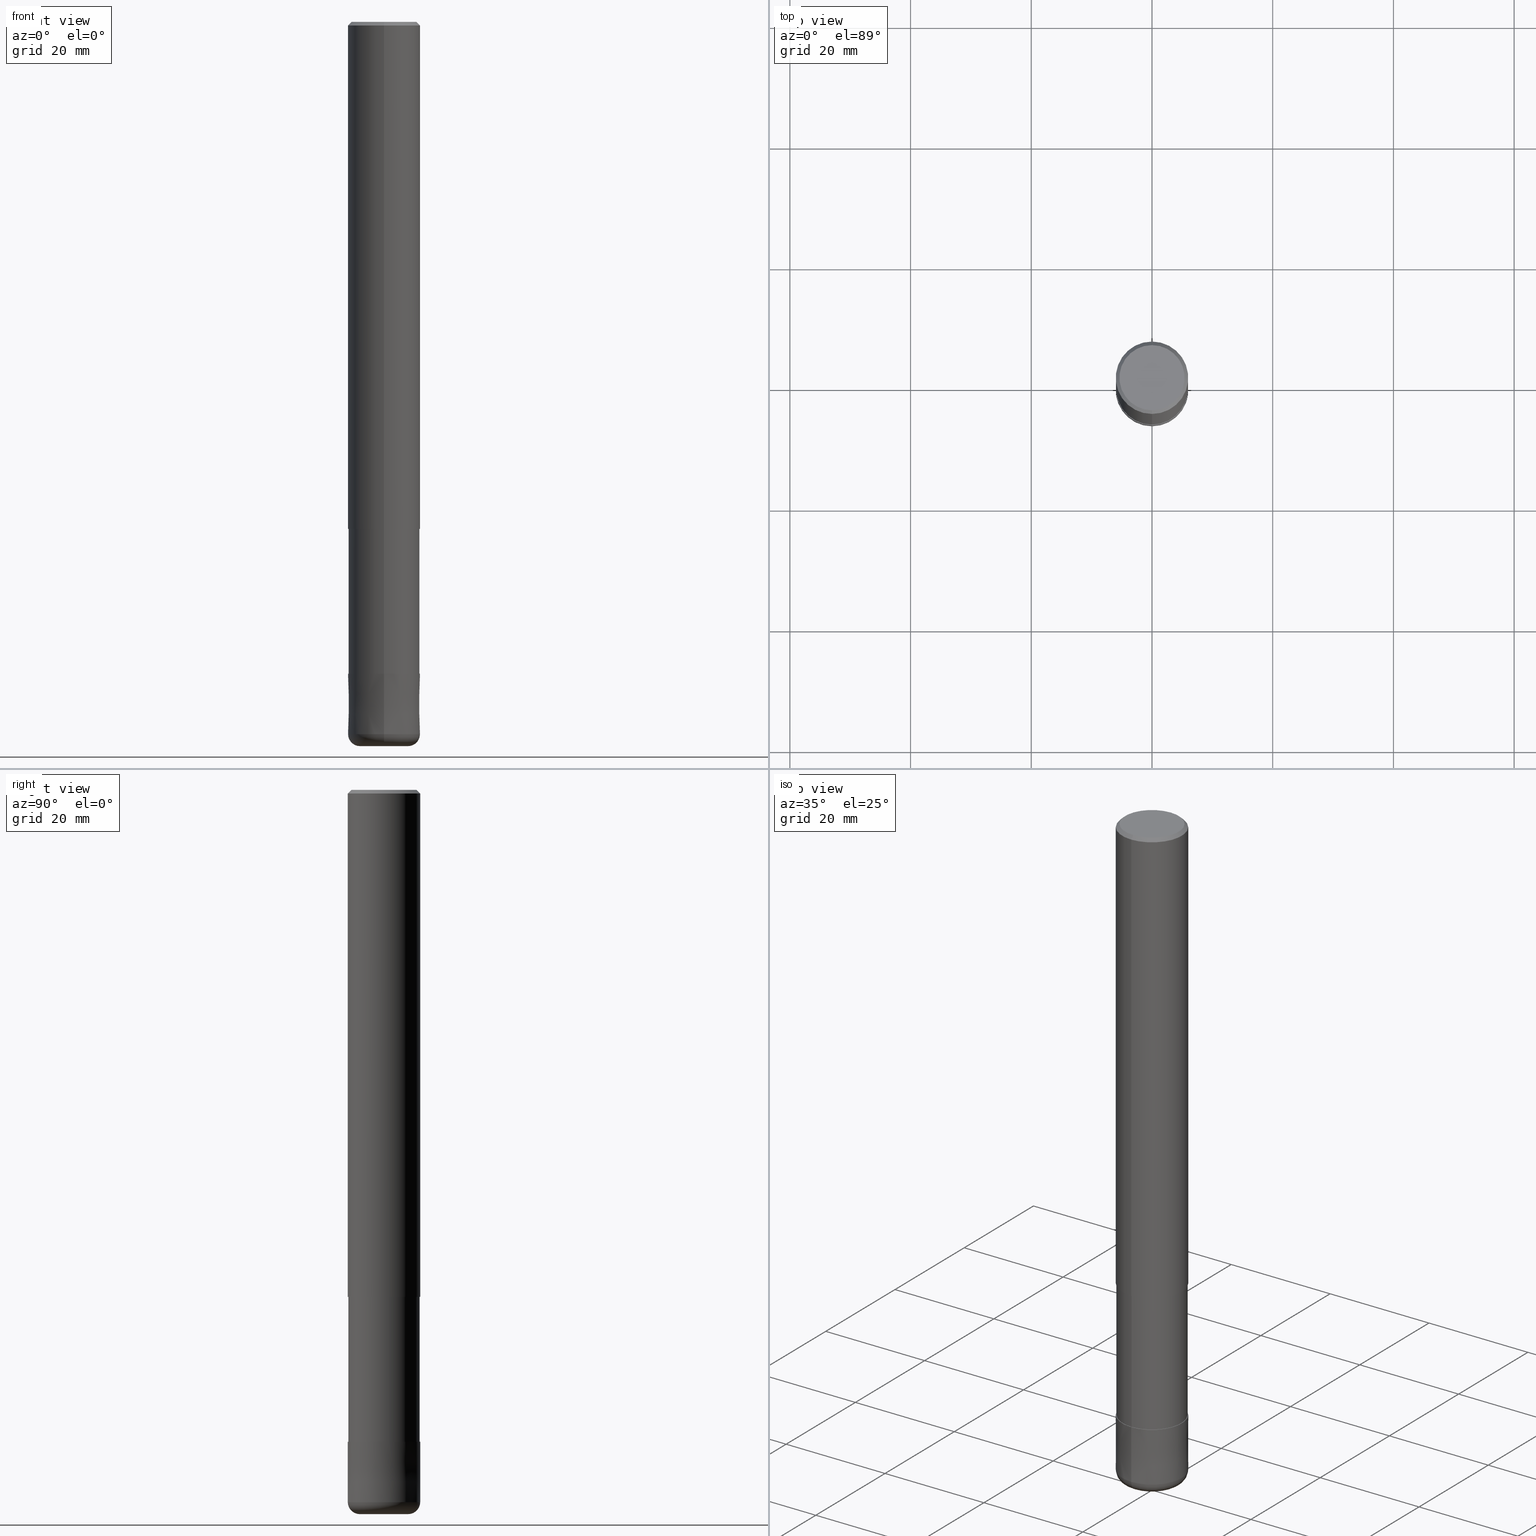
[diagram: canonical four-view strip — front | top / right | iso, engineering-drawing reading convention]
A machine part, canonical four-view strip (front | top / right | iso — engineering-drawing reading convention). The complete STEP part file that produces these views, byte-faithful:
ISO-10303-21;
HEADER;
FILE_DESCRIPTION(('no description'),'unknown implementation level');
FILE_NAME('HRRS4120-20-36-Huellk.stp','  ',('CIMSOURCE GmbH'),('CADClick - KiM GmbH - www.kimweb.de'),'unknown preprocess','ACIS','unknown authorization');
FILE_SCHEMA(('automotive_design'));
ENDSEC;
DATA;
#1=MECHANICAL_DESIGN_GEOMETRIC_PRESENTATION_REPRESENTATION(' ',(#14,#15,#16,#17,#18,#19,#20,#21,#22,#23,#24,#25,#26,#27,#28,#29,#30,#31,#32,#33,#34,#35,#36,#37,#38,#39,#40,#41,#42,#43,#44,#45,#46,#47,#48,#49,#50,#51,#52,#53,#54,#55,#56,#57,#58,#59,#60,#61,#62,#63,#64,#65,#66,#67,#68,#69,#70,#71,#72),#10);
#2=PRODUCT_DEFINITION_CONTEXT('',#73,'design');
#3=APPLICATION_PROTOCOL_DEFINITION('INTERNATIONAL STANDARD','automotive_design',1994,#73);
#4=PRODUCT_CATEGORY_RELATIONSHIP('NONE','NONE',#74,#75);
#5=SHAPE_DEFINITION_REPRESENTATION(#76,#77);
#6=PRODUCT_DEFINITION_CONTEXT('',#78,'design');
#7=APPLICATION_PROTOCOL_DEFINITION('INTERNATIONAL STANDARD','automotive_design',1994,#78);
#8=PRODUCT_CATEGORY_RELATIONSHIP('NONE','NONE',#79,#80);
#9=SHAPE_DEFINITION_REPRESENTATION(#81,#82);
#10= (GEOMETRIC_REPRESENTATION_CONTEXT(3)GLOBAL_UNCERTAINTY_ASSIGNED_CONTEXT((#85))GLOBAL_UNIT_ASSIGNED_CONTEXT((#87,#88,#89))REPRESENTATION_CONTEXT('NONE','WORKSPACE'));
#14=STYLED_ITEM('',(#91),#92);
#15=STYLED_ITEM('',(#93),#94);
#16=STYLED_ITEM('',(#95),#96);
#17=STYLED_ITEM('',(#97),#98);
#18=STYLED_ITEM('',(#99),#100);
#19=STYLED_ITEM('',(#101),#102);
#20=STYLED_ITEM('',(#103),#104);
#21=STYLED_ITEM('',(#105),#106);
#22=STYLED_ITEM('',(#107),#108);
#23=STYLED_ITEM('',(#109),#110);
#24=STYLED_ITEM('',(#111),#112);
#25=STYLED_ITEM('',(#113),#114);
#26=STYLED_ITEM('',(#115),#116);
#27=STYLED_ITEM('',(#117),#118);
#28=STYLED_ITEM('',(#119),#120);
#29=STYLED_ITEM('',(#121),#122);
#30=STYLED_ITEM('',(#123),#124);
#31=STYLED_ITEM('',(#125),#126);
#32=STYLED_ITEM('',(#127),#128);
#33=STYLED_ITEM('',(#129),#130);
#34=STYLED_ITEM('',(#131),#132);
#35=STYLED_ITEM('',(#133),#134);
#36=STYLED_ITEM('',(#135),#136);
#37=STYLED_ITEM('',(#137),#138);
#38=STYLED_ITEM('',(#139),#140);
#39=STYLED_ITEM('',(#141),#142);
#40=STYLED_ITEM('',(#143),#144);
#41=STYLED_ITEM('',(#145),#146);
#42=STYLED_ITEM('',(#147),#148);
#43=STYLED_ITEM('',(#149),#150);
#44=STYLED_ITEM('',(#151),#152);
#45=STYLED_ITEM('',(#153),#154);
#46=STYLED_ITEM('',(#155),#156);
#47=STYLED_ITEM('',(#157),#158);
#48=STYLED_ITEM('',(#159),#160);
#49=STYLED_ITEM('',(#161),#162);
#50=STYLED_ITEM('',(#163),#164);
#51=STYLED_ITEM('',(#165),#166);
#52=STYLED_ITEM('',(#167),#168);
#53=STYLED_ITEM('',(#169),#170);
#54=STYLED_ITEM('',(#171),#172);
#55=STYLED_ITEM('',(#173),#174);
#56=STYLED_ITEM('',(#175),#176);
#57=STYLED_ITEM('',(#177),#178);
#58=STYLED_ITEM('',(#179),#180);
#59=STYLED_ITEM('',(#181),#182);
#60=STYLED_ITEM('',(#183),#184);
#61=STYLED_ITEM('',(#185),#186);
#62=STYLED_ITEM('',(#187),#188);
#63=STYLED_ITEM('',(#189),#190);
#64=STYLED_ITEM('',(#191),#192);
#65=STYLED_ITEM('',(#193),#194);
#66=STYLED_ITEM('',(#195),#196);
#67=STYLED_ITEM('',(#197),#198);
#68=STYLED_ITEM('',(#199),#200);
#69=STYLED_ITEM('',(#201),#202);
#70=STYLED_ITEM('',(#203),#204);
#71=STYLED_ITEM('',(#205),#206);
#72=STYLED_ITEM('',(#207),#208);
#73=APPLICATION_CONTEXT(' ');
#74=PRODUCT_CATEGORY('part','NONE');
#75=PRODUCT_RELATED_PRODUCT_CATEGORY('detail',' ',(#209));
#76=PRODUCT_DEFINITION_SHAPE('NONE','NONE',#210);
#77=ADVANCED_BREP_SHAPE_REPRESENTATION('1',(#124,#211),#10);
#78=APPLICATION_CONTEXT(' ');
#79=PRODUCT_CATEGORY('part','NONE');
#80=PRODUCT_RELATED_PRODUCT_CATEGORY('detail',' ',(#212));
#81=PRODUCT_DEFINITION_SHAPE('NONE','NONE',#213);
#82=ADVANCED_BREP_SHAPE_REPRESENTATION('2',(#100,#214),#10);
#85=UNCERTAINTY_MEASURE_WITH_UNIT(LENGTH_MEASURE(1.0E-006),#87,'','');
#87= (CONVERSION_BASED_UNIT('MILLIMETRE',#217)LENGTH_UNIT()NAMED_UNIT(#220));
#88= (NAMED_UNIT(#222)PLANE_ANGLE_UNIT()SI_UNIT($,.RADIAN.));
#89= (NAMED_UNIT(#222)SOLID_ANGLE_UNIT()SI_UNIT($,.STERADIAN.));
#91=PRESENTATION_STYLE_ASSIGNMENT((#228));
#92=ADVANCED_FACE('',(#229,#230),#231,.T.);
#93=PRESENTATION_STYLE_ASSIGNMENT((#232));
#94=EDGE_CURVE('',#174,#122,#233,.T.);
#95=PRESENTATION_STYLE_ASSIGNMENT((#234));
#96=EDGE_CURVE('',#122,#144,#235,.T.);
#97=PRESENTATION_STYLE_ASSIGNMENT((#236));
#98=ADVANCED_FACE('',(#237),#238,.T.);
#99=PRESENTATION_STYLE_ASSIGNMENT((#239));
#100=MANIFOLD_SOLID_BREP('2',#240);
#101=PRESENTATION_STYLE_ASSIGNMENT((#241));
#102=EDGE_CURVE('',#126,#154,#242,.T.);
#103=PRESENTATION_STYLE_ASSIGNMENT((#243));
#104=ADVANCED_FACE('',(#244),#245,.T.);
#105=PRESENTATION_STYLE_ASSIGNMENT((#246));
#106=EDGE_CURVE('',#192,#206,#247,.T.);
#107=PRESENTATION_STYLE_ASSIGNMENT((#248));
#108=ADVANCED_FACE('',(#249),#250,.T.);
#109=PRESENTATION_STYLE_ASSIGNMENT((#251));
#110=ADVANCED_FACE('',(#252),#253,.T.);
#111=PRESENTATION_STYLE_ASSIGNMENT((#254));
#112=EDGE_CURVE('',#176,#192,#255,.T.);
#113=PRESENTATION_STYLE_ASSIGNMENT((#256));
#114=EDGE_CURVE('',#184,#174,#257,.T.);
#115=PRESENTATION_STYLE_ASSIGNMENT((#258));
#116=EDGE_CURVE('',#154,#126,#259,.T.);
#117=PRESENTATION_STYLE_ASSIGNMENT((#260));
#118=EDGE_CURVE('',#192,#176,#261,.T.);
#119=PRESENTATION_STYLE_ASSIGNMENT((#262));
#120=ADVANCED_FACE('',(#263),#264,.T.);
#121=PRESENTATION_STYLE_ASSIGNMENT((#265));
#122=VERTEX_POINT('',#266);
#123=PRESENTATION_STYLE_ASSIGNMENT((#267));
#124=MANIFOLD_SOLID_BREP('1',#268);
#125=PRESENTATION_STYLE_ASSIGNMENT((#269));
#126=VERTEX_POINT('',#270);
#127=PRESENTATION_STYLE_ASSIGNMENT((#271));
#128=VERTEX_POINT('',#272);
#129=PRESENTATION_STYLE_ASSIGNMENT((#273));
#130=EDGE_CURVE('',#174,#184,#274,.T.);
#131=PRESENTATION_STYLE_ASSIGNMENT((#275));
#132=EDGE_CURVE('',#128,#206,#276,.T.);
#133=PRESENTATION_STYLE_ASSIGNMENT((#277));
#134=EDGE_CURVE('',#202,#162,#278,.T.);
#135=PRESENTATION_STYLE_ASSIGNMENT((#279));
#136=EDGE_CURVE('',#144,#184,#280,.T.);
#137=PRESENTATION_STYLE_ASSIGNMENT((#281));
#138=ADVANCED_FACE('',(#282),#283,.T.);
#139=PRESENTATION_STYLE_ASSIGNMENT((#284));
#140=EDGE_CURVE('',#190,#202,#285,.T.);
#141=PRESENTATION_STYLE_ASSIGNMENT((#286));
#142=ADVANCED_FACE('',(#287),#288,.T.);
#143=PRESENTATION_STYLE_ASSIGNMENT((#289));
#144=VERTEX_POINT('',#290);
#145=PRESENTATION_STYLE_ASSIGNMENT((#291));
#146=EDGE_CURVE('',#154,#206,#292,.T.);
#147=PRESENTATION_STYLE_ASSIGNMENT((#293));
#148=VERTEX_POINT('',#294);
#149=PRESENTATION_STYLE_ASSIGNMENT((#295));
#150=EDGE_CURVE('',#196,#174,#296,.T.);
#151=PRESENTATION_STYLE_ASSIGNMENT((#297));
#152=EDGE_CURVE('',#148,#162,#298,.T.);
#153=PRESENTATION_STYLE_ASSIGNMENT((#299));
#154=VERTEX_POINT('',#300);
#155=PRESENTATION_STYLE_ASSIGNMENT((#301));
#156=EDGE_CURVE('',#128,#176,#302,.T.);
#157=PRESENTATION_STYLE_ASSIGNMENT((#303));
#158=EDGE_CURVE('',#162,#148,#304,.T.);
#159=PRESENTATION_STYLE_ASSIGNMENT((#305));
#160=EDGE_CURVE('',#144,#122,#306,.T.);
#161=PRESENTATION_STYLE_ASSIGNMENT((#307));
#162=VERTEX_POINT('',#308);
#163=PRESENTATION_STYLE_ASSIGNMENT((#309));
#164=EDGE_CURVE('',#128,#126,#310,.T.);
#165=PRESENTATION_STYLE_ASSIGNMENT((#311));
#166=VERTEX_POINT('',#312);
#167=PRESENTATION_STYLE_ASSIGNMENT((#313));
#168=EDGE_CURVE('',#196,#166,#314,.T.);
#169=PRESENTATION_STYLE_ASSIGNMENT((#315));
#170=ADVANCED_FACE('',(#316),#317,.T.);
#171=PRESENTATION_STYLE_ASSIGNMENT((#318));
#172=ADVANCED_FACE('',(#319),#320,.T.);
#173=PRESENTATION_STYLE_ASSIGNMENT((#321));
#174=VERTEX_POINT('',#322);
#175=PRESENTATION_STYLE_ASSIGNMENT((#323));
#176=VERTEX_POINT('',#324);
#177=PRESENTATION_STYLE_ASSIGNMENT((#325));
#178=EDGE_CURVE('',#148,#190,#326,.T.);
#179=PRESENTATION_STYLE_ASSIGNMENT((#327));
#180=ADVANCED_FACE('',(#328),#329,.T.);
#181=PRESENTATION_STYLE_ASSIGNMENT((#330));
#182=EDGE_CURVE('',#202,#190,#331,.T.);
#183=PRESENTATION_STYLE_ASSIGNMENT((#332));
#184=VERTEX_POINT('',#333);
#185=PRESENTATION_STYLE_ASSIGNMENT((#334));
#186=EDGE_CURVE('',#206,#128,#335,.T.);
#187=PRESENTATION_STYLE_ASSIGNMENT((#336));
#188=ADVANCED_FACE('',(#337),#338,.T.);
#189=PRESENTATION_STYLE_ASSIGNMENT((#339));
#190=VERTEX_POINT('',#340);
#191=PRESENTATION_STYLE_ASSIGNMENT((#341));
#192=VERTEX_POINT('',#342);
#193=PRESENTATION_STYLE_ASSIGNMENT((#343));
#194=ADVANCED_FACE('',(#344),#345,.T.);
#195=PRESENTATION_STYLE_ASSIGNMENT((#346));
#196=VERTEX_POINT('',#347);
#197=PRESENTATION_STYLE_ASSIGNMENT((#348));
#198=EDGE_CURVE('',#184,#166,#349,.T.);
#199=PRESENTATION_STYLE_ASSIGNMENT((#350));
#200=ADVANCED_FACE('',(#351),#352,.T.);
#201=PRESENTATION_STYLE_ASSIGNMENT((#353));
#202=VERTEX_POINT('',#354);
#203=PRESENTATION_STYLE_ASSIGNMENT((#355));
#204=ADVANCED_FACE('',(#356),#357,.T.);
#205=PRESENTATION_STYLE_ASSIGNMENT((#358));
#206=VERTEX_POINT('',#359);
#207=PRESENTATION_STYLE_ASSIGNMENT((#360));
#208=EDGE_CURVE('',#166,#196,#361,.T.);
#209=PRODUCT('1','1','PART-1-DESC',(#362));
#210=PRODUCT_DEFINITION('NONE','NONE',#363,#2);
#211=AXIS2_PLACEMENT_3D('',#364,#365,#366);
#212=PRODUCT('2','2','PART-2-DESC',(#367));
#213=PRODUCT_DEFINITION('NONE','NONE',#368,#6);
#214=AXIS2_PLACEMENT_3D('',#369,#370,#371);
#217=LENGTH_MEASURE_WITH_UNIT(LENGTH_MEASURE(1.0),#372);
#220=DIMENSIONAL_EXPONENTS(1.0,0.0,0.0,0.0,0.0,0.0,0.0);
#222=DIMENSIONAL_EXPONENTS(0.0,0.0,0.0,0.0,0.0,0.0,0.0);
#228=SURFACE_STYLE_USAGE(.BOTH.,#373);
#229=FACE_OUTER_BOUND('',#374,.T.);
#230=FACE_BOUND('',#375,.T.);
#231=PLANE('',#376);
#232=CURVE_STYLE('',#377,POSITIVE_LENGTH_MEASURE(1.0E-006),#378);
#233=LINE('',#379,#380);
#234=CURVE_STYLE('',#381,POSITIVE_LENGTH_MEASURE(1.0E-006),#382);
#235=CIRCLE('',#383,6.0);
#236=SURFACE_STYLE_USAGE(.BOTH.,#384);
#237=FACE_OUTER_BOUND('',#385,.T.);
#238=CYLINDRICAL_SURFACE('',#386,5.90995);
#239=SURFACE_STYLE_USAGE(.BOTH.,#387);
#240=CLOSED_SHELL('',(#194,#142,#200,#120,#108,#138));
#241=CURVE_STYLE('',#388,POSITIVE_LENGTH_MEASURE(1.0E-006),#389);
#242=CIRCLE('',#390,5.9999);
#243=SURFACE_STYLE_USAGE(.BOTH.,#391);
#244=FACE_OUTER_BOUND('',#392,.T.);
#245=CONICAL_SURFACE('',#393,5.7,0.785398163397453);
#246=CURVE_STYLE('',#394,POSITIVE_LENGTH_MEASURE(1.0E-006),#395);
#247=CIRCLE('',#396,2.0);
#248=SURFACE_STYLE_USAGE(.BOTH.,#397);
#249=FACE_OUTER_BOUND('',#398,.T.);
#250=TOROIDAL_SURFACE('',#399,4.0,2.0);
#251=SURFACE_STYLE_USAGE(.BOTH.,#400);
#252=FACE_OUTER_BOUND('',#401,.T.);
#253=CONICAL_SURFACE('',#402,5.7,0.785398163397453);
#254=CURVE_STYLE('',#403,POSITIVE_LENGTH_MEASURE(1.0E-006),#404);
#255=CIRCLE('',#405,4.0);
#256=CURVE_STYLE('',#406,POSITIVE_LENGTH_MEASURE(1.0E-006),#407);
#257=CIRCLE('',#408,6.0);
#258=CURVE_STYLE('',#409,POSITIVE_LENGTH_MEASURE(1.0E-006),#410);
#259=CIRCLE('',#411,5.9999);
#260=CURVE_STYLE('',#412,POSITIVE_LENGTH_MEASURE(1.0E-006),#413);
#261=CIRCLE('',#414,4.0);
#262=SURFACE_STYLE_USAGE(.BOTH.,#415);
#263=FACE_OUTER_BOUND('',#416,.T.);
#264=CONICAL_SURFACE('',#417,5.99995,9.99999999964336E-006);
#265=POINT_STYLE(' ',#418,POSITIVE_LENGTH_MEASURE(1.0E-006),#419);
#266=CARTESIAN_POINT('',(0.0,6.0,-84.0));
#267=SURFACE_STYLE_USAGE(.BOTH.,#420);
#268=CLOSED_SHELL('',(#204,#188,#104,#92,#172,#110,#170,#98,#180));
#269=POINT_STYLE(' ',#421,POSITIVE_LENGTH_MEASURE(1.0E-006),#422);
#270=CARTESIAN_POINT('',(7.34751566229888E-016,-5.9999,-108.0));
#271=POINT_STYLE(' ',#423,POSITIVE_LENGTH_MEASURE(1.0E-006),#424);
#272=CARTESIAN_POINT('',(7.34763812293427E-016,-6.0,-118.0));
#273=CURVE_STYLE('',#425,POSITIVE_LENGTH_MEASURE(1.0E-006),#426);
#274=CIRCLE('',#427,6.0);
#275=CURVE_STYLE('',#428,POSITIVE_LENGTH_MEASURE(1.0E-006),#429);
#276=CIRCLE('',#430,6.0);
#277=CURVE_STYLE('',#431,POSITIVE_LENGTH_MEASURE(1.0E-006),#432);
#278=LINE('',#433,#434);
#279=CURVE_STYLE('',#435,POSITIVE_LENGTH_MEASURE(1.0E-006),#436);
#280=LINE('',#437,#438);
#281=SURFACE_STYLE_USAGE(.BOTH.,#439);
#282=FACE_OUTER_BOUND('',#440,.T.);
#283=PLANE('',#441);
#284=CURVE_STYLE('',#442,POSITIVE_LENGTH_MEASURE(1.0E-006),#443);
#285=CIRCLE('',#444,5.90995);
#286=SURFACE_STYLE_USAGE(.BOTH.,#445);
#287=FACE_OUTER_BOUND('',#446,.T.);
#288=CONICAL_SURFACE('',#447,5.99995,9.99999999964336E-006);
#289=POINT_STYLE(' ',#448,POSITIVE_LENGTH_MEASURE(1.0E-006),#449);
#290=CARTESIAN_POINT('',(7.34763812293426E-016,-6.0,-84.0));
#291=CURVE_STYLE('',#450,POSITIVE_LENGTH_MEASURE(1.0E-006),#451);
#292=LINE('',#452,#453);
#293=POINT_STYLE(' ',#454,POSITIVE_LENGTH_MEASURE(1.0E-006),#455);
#294=CARTESIAN_POINT('',(7.23736232077256E-016,-5.90995,-108.0));
#295=CURVE_STYLE('',#456,POSITIVE_LENGTH_MEASURE(1.0E-006),#457);
#296=LINE('',#458,#459);
#297=CURVE_STYLE('',#460,POSITIVE_LENGTH_MEASURE(1.0E-006),#461);
#298=CIRCLE('',#462,5.90995);
#299=POINT_STYLE(' ',#463,POSITIVE_LENGTH_MEASURE(1.0E-006),#464);
#300=CARTESIAN_POINT('',(0.0,5.9999,-108.0));
#301=CURVE_STYLE('',#465,POSITIVE_LENGTH_MEASURE(1.0E-006),#466);
#302=CIRCLE('',#467,2.0);
#303=CURVE_STYLE('',#468,POSITIVE_LENGTH_MEASURE(1.0E-006),#469);
#304=CIRCLE('',#470,5.90995);
#305=CURVE_STYLE('',#471,POSITIVE_LENGTH_MEASURE(1.0E-006),#472);
#306=CIRCLE('',#473,6.0);
#307=POINT_STYLE(' ',#474,POSITIVE_LENGTH_MEASURE(1.0E-006),#475);
#308=CARTESIAN_POINT('',(0.0,5.90995,-108.0));
#309=CURVE_STYLE('',#476,POSITIVE_LENGTH_MEASURE(1.0E-006),#477);
#310=LINE('',#478,#479);
#311=POINT_STYLE(' ',#480,POSITIVE_LENGTH_MEASURE(1.0E-006),#481);
#312=CARTESIAN_POINT('',(6.61287431064084E-016,-5.4,0.0));
#313=CURVE_STYLE('',#482,POSITIVE_LENGTH_MEASURE(1.0E-006),#483);
#314=CIRCLE('',#484,5.4);
#315=SURFACE_STYLE_USAGE(.BOTH.,#485);
#316=FACE_OUTER_BOUND('',#486,.T.);
#317=CYLINDRICAL_SURFACE('',#487,6.0);
#318=SURFACE_STYLE_USAGE(.BOTH.,#488);
#319=FACE_OUTER_BOUND('',#489,.T.);
#320=PLANE('',#490);
#321=POINT_STYLE(' ',#491,POSITIVE_LENGTH_MEASURE(1.0E-006),#492);
#322=CARTESIAN_POINT('',(0.0,6.0,-0.599999999999994));
#323=POINT_STYLE(' ',#493,POSITIVE_LENGTH_MEASURE(1.0E-006),#494);
#324=CARTESIAN_POINT('',(4.89842541528951E-016,-4.0,-120.0));
#325=CURVE_STYLE('',#495,POSITIVE_LENGTH_MEASURE(1.0E-006),#496);
#326=LINE('',#497,#498);
#327=SURFACE_STYLE_USAGE(.BOTH.,#499);
#328=FACE_OUTER_BOUND('',#500,.T.);
#329=PLANE('',#501);
#330=CURVE_STYLE('',#502,POSITIVE_LENGTH_MEASURE(1.0E-006),#503);
#331=CIRCLE('',#504,5.90995);
#332=POINT_STYLE(' ',#505,POSITIVE_LENGTH_MEASURE(1.0E-006),#506);
#333=CARTESIAN_POINT('',(7.34763812293426E-016,-6.0,-0.599999999999994));
#334=CURVE_STYLE('',#507,POSITIVE_LENGTH_MEASURE(1.0E-006),#508);
#335=CIRCLE('',#509,6.0);
#336=SURFACE_STYLE_USAGE(.BOTH.,#510);
#337=FACE_OUTER_BOUND('',#511,.T.);
#338=CYLINDRICAL_SURFACE('',#512,6.0);
#339=POINT_STYLE(' ',#513,POSITIVE_LENGTH_MEASURE(1.0E-006),#514);
#340=CARTESIAN_POINT('',(7.23736232077256E-016,-5.90995,-84.0));
#341=POINT_STYLE(' ',#515,POSITIVE_LENGTH_MEASURE(1.0E-006),#516);
#342=CARTESIAN_POINT('',(0.0,4.0,-120.0));
#343=SURFACE_STYLE_USAGE(.BOTH.,#517);
#344=FACE_OUTER_BOUND('',#518,.T.);
#345=TOROIDAL_SURFACE('',#519,4.0,2.0);
#346=POINT_STYLE(' ',#520,POSITIVE_LENGTH_MEASURE(1.0E-006),#521);
#347=CARTESIAN_POINT('',(0.0,5.4,0.0));
#348=CURVE_STYLE('',#522,POSITIVE_LENGTH_MEASURE(1.0E-006),#523);
#349=LINE('',#524,#525);
#350=SURFACE_STYLE_USAGE(.BOTH.,#526);
#351=FACE_OUTER_BOUND('',#527,.T.);
#352=PLANE('',#528);
#353=POINT_STYLE(' ',#529,POSITIVE_LENGTH_MEASURE(1.0E-006),#530);
#354=CARTESIAN_POINT('',(0.0,5.90995,-84.0));
#355=SURFACE_STYLE_USAGE(.BOTH.,#531);
#356=FACE_OUTER_BOUND('',#532,.T.);
#357=CYLINDRICAL_SURFACE('',#533,5.90995);
#358=POINT_STYLE(' ',#534,POSITIVE_LENGTH_MEASURE(1.0E-006),#535);
#359=CARTESIAN_POINT('',(0.0,6.0,-118.0));
#360=CURVE_STYLE('',#536,POSITIVE_LENGTH_MEASURE(1.0E-006),#537);
#361=CIRCLE('',#538,5.4);
#362=PRODUCT_CONTEXT('',#73,'mechanical');
#363=PRODUCT_DEFINITION_FORMATION_WITH_SPECIFIED_SOURCE(' ','NONE',#209,.NOT_KNOWN.);
#364=CARTESIAN_POINT('',(0.0,0.0,0.0));
#365=DIRECTION('',(0.0,0.0,1.0));
#366=DIRECTION('',(1.0,0.0,0.0));
#367=PRODUCT_CONTEXT('',#78,'mechanical');
#368=PRODUCT_DEFINITION_FORMATION_WITH_SPECIFIED_SOURCE(' ','NONE',#212,.NOT_KNOWN.);
#369=CARTESIAN_POINT('',(0.0,0.0,0.0));
#370=DIRECTION('',(0.0,0.0,1.0));
#371=DIRECTION('',(1.0,0.0,0.0));
#372= (NAMED_UNIT(#220)LENGTH_UNIT()SI_UNIT(.MILLI.,.METRE.));
#373=SURFACE_SIDE_STYLE('',(#540));
#374=EDGE_LOOP('',(#541,#542));
#375=EDGE_LOOP('',(#543,#544));
#376=AXIS2_PLACEMENT_3D('',#545,#546,#547);
#377=DRAUGHTING_PRE_DEFINED_CURVE_FONT('continuous');
#378=COLOUR_RGB('',0.498039215803146,0.498039215803146,0.498039215803146);
#379=CARTESIAN_POINT('',(-7.34763812293426E-016,6.0,-42.3));
#380=VECTOR('',#548,1.0);
#381=DRAUGHTING_PRE_DEFINED_CURVE_FONT('continuous');
#382=COLOUR_RGB('',0.498039215803146,0.498039215803146,0.498039215803146);
#383=AXIS2_PLACEMENT_3D('',#549,#550,#551);
#384=SURFACE_SIDE_STYLE('',(#552));
#385=EDGE_LOOP('',(#553,#554,#555,#556));
#386=AXIS2_PLACEMENT_3D('',#557,#558,#559);
#387=SURFACE_SIDE_STYLE('',(#560));
#388=DRAUGHTING_PRE_DEFINED_CURVE_FONT('continuous');
#389=COLOUR_RGB('',0.800000011920929,0.800000011920929,0.800000011920929);
#390=AXIS2_PLACEMENT_3D('',#561,#562,#563);
#391=SURFACE_SIDE_STYLE('',(#564));
#392=EDGE_LOOP('',(#565,#566,#567,#568));
#393=AXIS2_PLACEMENT_3D('',#569,#570,#571);
#394=DRAUGHTING_PRE_DEFINED_CURVE_FONT('continuous');
#395=COLOUR_RGB('',0.800000011920929,0.800000011920929,0.800000011920929);
#396=AXIS2_PLACEMENT_3D('',#572,#573,#574);
#397=SURFACE_SIDE_STYLE('',(#575));
#398=EDGE_LOOP('',(#576,#577,#578,#579));
#399=AXIS2_PLACEMENT_3D('',#580,#581,#582);
#400=SURFACE_SIDE_STYLE('',(#583));
#401=EDGE_LOOP('',(#584,#585,#586,#587));
#402=AXIS2_PLACEMENT_3D('',#588,#589,#590);
#403=DRAUGHTING_PRE_DEFINED_CURVE_FONT('continuous');
#404=COLOUR_RGB('',0.800000011920929,0.800000011920929,0.800000011920929);
#405=AXIS2_PLACEMENT_3D('',#591,#592,#593);
#406=DRAUGHTING_PRE_DEFINED_CURVE_FONT('continuous');
#407=COLOUR_RGB('',0.498039215803146,0.498039215803146,0.498039215803146);
#408=AXIS2_PLACEMENT_3D('',#594,#595,#596);
#409=DRAUGHTING_PRE_DEFINED_CURVE_FONT('continuous');
#410=COLOUR_RGB('',0.800000011920929,0.800000011920929,0.800000011920929);
#411=AXIS2_PLACEMENT_3D('',#597,#598,#599);
#412=DRAUGHTING_PRE_DEFINED_CURVE_FONT('continuous');
#413=COLOUR_RGB('',0.800000011920929,0.800000011920929,0.800000011920929);
#414=AXIS2_PLACEMENT_3D('',#600,#601,#602);
#415=SURFACE_SIDE_STYLE('',(#603));
#416=EDGE_LOOP('',(#604,#605,#606,#607));
#417=AXIS2_PLACEMENT_3D('',#608,#609,#610);
#418=PRE_DEFINED_MARKER('');
#419=COLOUR_RGB('',0.498039215803146,0.498039215803146,0.498039215803146);
#420=SURFACE_SIDE_STYLE('',(#611));
#421=PRE_DEFINED_MARKER('');
#422=COLOUR_RGB('',0.800000011920929,0.800000011920929,0.800000011920929);
#423=PRE_DEFINED_MARKER('');
#424=COLOUR_RGB('',0.800000011920929,0.800000011920929,0.800000011920929);
#425=DRAUGHTING_PRE_DEFINED_CURVE_FONT('continuous');
#426=COLOUR_RGB('',0.498039215803146,0.498039215803146,0.498039215803146);
#427=AXIS2_PLACEMENT_3D('',#612,#613,#614);
#428=DRAUGHTING_PRE_DEFINED_CURVE_FONT('continuous');
#429=COLOUR_RGB('',0.800000011920929,0.800000011920929,0.800000011920929);
#430=AXIS2_PLACEMENT_3D('',#615,#616,#617);
#431=DRAUGHTING_PRE_DEFINED_CURVE_FONT('continuous');
#432=COLOUR_RGB('',0.498039215803146,0.498039215803146,0.498039215803146);
#433=CARTESIAN_POINT('',(-7.23736232077256E-016,5.90995,-96.0));
#434=VECTOR('',#618,1.0);
#435=DRAUGHTING_PRE_DEFINED_CURVE_FONT('continuous');
#436=COLOUR_RGB('',0.498039215803146,0.498039215803146,0.498039215803146);
#437=CARTESIAN_POINT('',(7.34763812293426E-016,-6.0,-42.3));
#438=VECTOR('',#619,1.0);
#439=SURFACE_SIDE_STYLE('',(#620));
#440=EDGE_LOOP('',(#621,#622));
#441=AXIS2_PLACEMENT_3D('',#623,#624,#625);
#442=DRAUGHTING_PRE_DEFINED_CURVE_FONT('continuous');
#443=COLOUR_RGB('',0.498039215803146,0.498039215803146,0.498039215803146);
#444=AXIS2_PLACEMENT_3D('',#626,#627,#628);
#445=SURFACE_SIDE_STYLE('',(#629));
#446=EDGE_LOOP('',(#630,#631,#632,#633));
#447=AXIS2_PLACEMENT_3D('',#634,#635,#636);
#448=PRE_DEFINED_MARKER('');
#449=COLOUR_RGB('',0.498039215803146,0.498039215803146,0.498039215803146);
#450=DRAUGHTING_PRE_DEFINED_CURVE_FONT('continuous');
#451=COLOUR_RGB('',0.800000011920929,0.800000011920929,0.800000011920929);
#452=CARTESIAN_POINT('',(-7.34757689261657E-016,5.99995,-113.0));
#453=VECTOR('',#637,1.0);
#454=PRE_DEFINED_MARKER('');
#455=COLOUR_RGB('',0.498039215803146,0.498039215803146,0.498039215803146);
#456=DRAUGHTING_PRE_DEFINED_CURVE_FONT('continuous');
#457=COLOUR_RGB('',0.498039215803146,0.498039215803146,0.498039215803146);
#458=CARTESIAN_POINT('',(-6.98025621678755E-016,5.7,-0.299999999999997));
#459=VECTOR('',#638,1.0);
#460=DRAUGHTING_PRE_DEFINED_CURVE_FONT('continuous');
#461=COLOUR_RGB('',0.498039215803146,0.498039215803146,0.498039215803146);
#462=AXIS2_PLACEMENT_3D('',#639,#640,#641);
#463=PRE_DEFINED_MARKER('');
#464=COLOUR_RGB('',0.800000011920929,0.800000011920929,0.800000011920929);
#465=DRAUGHTING_PRE_DEFINED_CURVE_FONT('continuous');
#466=COLOUR_RGB('',0.800000011920929,0.800000011920929,0.800000011920929);
#467=AXIS2_PLACEMENT_3D('',#642,#643,#644);
#468=DRAUGHTING_PRE_DEFINED_CURVE_FONT('continuous');
#469=COLOUR_RGB('',0.498039215803146,0.498039215803146,0.498039215803146);
#470=AXIS2_PLACEMENT_3D('',#645,#646,#647);
#471=DRAUGHTING_PRE_DEFINED_CURVE_FONT('continuous');
#472=COLOUR_RGB('',0.498039215803146,0.498039215803146,0.498039215803146);
#473=AXIS2_PLACEMENT_3D('',#648,#649,#650);
#474=PRE_DEFINED_MARKER('');
#475=COLOUR_RGB('',0.498039215803146,0.498039215803146,0.498039215803146);
#476=DRAUGHTING_PRE_DEFINED_CURVE_FONT('continuous');
#477=COLOUR_RGB('',0.800000011920929,0.800000011920929,0.800000011920929);
#478=CARTESIAN_POINT('',(7.34757689261657E-016,-5.99995,-113.0));
#479=VECTOR('',#651,1.0);
#480=PRE_DEFINED_MARKER('');
#481=COLOUR_RGB('',0.498039215803146,0.498039215803146,0.498039215803146);
#482=DRAUGHTING_PRE_DEFINED_CURVE_FONT('continuous');
#483=COLOUR_RGB('',0.498039215803146,0.498039215803146,0.498039215803146);
#484=AXIS2_PLACEMENT_3D('',#652,#653,#654);
#485=SURFACE_SIDE_STYLE('',(#655));
#486=EDGE_LOOP('',(#656,#657,#658,#659));
#487=AXIS2_PLACEMENT_3D('',#660,#661,#662);
#488=SURFACE_SIDE_STYLE('',(#663));
#489=EDGE_LOOP('',(#664,#665));
#490=AXIS2_PLACEMENT_3D('',#666,#667,#668);
#491=PRE_DEFINED_MARKER('');
#492=COLOUR_RGB('',0.498039215803146,0.498039215803146,0.498039215803146);
#493=PRE_DEFINED_MARKER('');
#494=COLOUR_RGB('',0.800000011920929,0.800000011920929,0.800000011920929);
#495=DRAUGHTING_PRE_DEFINED_CURVE_FONT('continuous');
#496=COLOUR_RGB('',0.498039215803146,0.498039215803146,0.498039215803146);
#497=CARTESIAN_POINT('',(7.23736232077256E-016,-5.90995,-96.0));
#498=VECTOR('',#669,1.0);
#499=SURFACE_SIDE_STYLE('',(#670));
#500=EDGE_LOOP('',(#671,#672));
#501=AXIS2_PLACEMENT_3D('',#673,#674,#675);
#502=DRAUGHTING_PRE_DEFINED_CURVE_FONT('continuous');
#503=COLOUR_RGB('',0.498039215803146,0.498039215803146,0.498039215803146);
#504=AXIS2_PLACEMENT_3D('',#676,#677,#678);
#505=PRE_DEFINED_MARKER('');
#506=COLOUR_RGB('',0.498039215803146,0.498039215803146,0.498039215803146);
#507=DRAUGHTING_PRE_DEFINED_CURVE_FONT('continuous');
#508=COLOUR_RGB('',0.800000011920929,0.800000011920929,0.800000011920929);
#509=AXIS2_PLACEMENT_3D('',#679,#680,#681);
#510=SURFACE_SIDE_STYLE('',(#682));
#511=EDGE_LOOP('',(#683,#684,#685,#686));
#512=AXIS2_PLACEMENT_3D('',#687,#688,#689);
#513=PRE_DEFINED_MARKER('');
#514=COLOUR_RGB('',0.498039215803146,0.498039215803146,0.498039215803146);
#515=PRE_DEFINED_MARKER('');
#516=COLOUR_RGB('',0.800000011920929,0.800000011920929,0.800000011920929);
#517=SURFACE_SIDE_STYLE('',(#690));
#518=EDGE_LOOP('',(#691,#692,#693,#694));
#519=AXIS2_PLACEMENT_3D('',#695,#696,#697);
#520=PRE_DEFINED_MARKER('');
#521=COLOUR_RGB('',0.498039215803146,0.498039215803146,0.498039215803146);
#522=DRAUGHTING_PRE_DEFINED_CURVE_FONT('continuous');
#523=COLOUR_RGB('',0.498039215803146,0.498039215803146,0.498039215803146);
#524=CARTESIAN_POINT('',(6.98025621678755E-016,-5.7,-0.299999999999997));
#525=VECTOR('',#698,1.0);
#526=SURFACE_SIDE_STYLE('',(#699));
#527=EDGE_LOOP('',(#700,#701));
#528=AXIS2_PLACEMENT_3D('',#702,#703,#704);
#529=PRE_DEFINED_MARKER('');
#530=COLOUR_RGB('',0.498039215803146,0.498039215803146,0.498039215803146);
#531=SURFACE_SIDE_STYLE('',(#705));
#532=EDGE_LOOP('',(#706,#707,#708,#709));
#533=AXIS2_PLACEMENT_3D('',#710,#711,#712);
#534=PRE_DEFINED_MARKER('');
#535=COLOUR_RGB('',0.800000011920929,0.800000011920929,0.800000011920929);
#536=DRAUGHTING_PRE_DEFINED_CURVE_FONT('continuous');
#537=COLOUR_RGB('',0.498039215803146,0.498039215803146,0.498039215803146);
#538=AXIS2_PLACEMENT_3D('',#713,#714,#715);
#540=SURFACE_STYLE_FILL_AREA(#716);
#541=ORIENTED_EDGE('',*,*,#96,.T.);
#542=ORIENTED_EDGE('',*,*,#160,.T.);
#543=ORIENTED_EDGE('',*,*,#182,.F.);
#544=ORIENTED_EDGE('',*,*,#140,.F.);
#545=CARTESIAN_POINT('',(0.0,3.0,-84.0));
#546=DIRECTION('',(0.0,0.0,-1.0));
#547=DIRECTION('',(0.0,1.0,0.0));
#548=DIRECTION('',(0.0,0.0,-1.0));
#549=CARTESIAN_POINT('',(0.0,0.0,-84.0));
#550=DIRECTION('',(0.0,0.0,-1.0));
#551=DIRECTION('',(0.0,1.0,0.0));
#552=SURFACE_STYLE_FILL_AREA(#717);
#553=ORIENTED_EDGE('',*,*,#134,.T.);
#554=ORIENTED_EDGE('',*,*,#152,.F.);
#555=ORIENTED_EDGE('',*,*,#178,.T.);
#556=ORIENTED_EDGE('',*,*,#140,.T.);
#557=CARTESIAN_POINT('',(0.0,0.0,-96.0));
#558=DIRECTION('',(-0.0,-0.0,1.0));
#559=DIRECTION('',(0.0,1.0,0.0));
#560=SURFACE_STYLE_FILL_AREA(#718);
#561=CARTESIAN_POINT('',(0.0,0.0,-108.0));
#562=DIRECTION('',(0.0,0.0,-1.0));
#563=DIRECTION('',(0.0,1.0,0.0));
#564=SURFACE_STYLE_FILL_AREA(#719);
#565=ORIENTED_EDGE('',*,*,#150,.F.);
#566=ORIENTED_EDGE('',*,*,#168,.T.);
#567=ORIENTED_EDGE('',*,*,#198,.F.);
#568=ORIENTED_EDGE('',*,*,#130,.F.);
#569=CARTESIAN_POINT('',(0.0,0.0,-0.299999999999997));
#570=DIRECTION('',(0.0,-0.0,-1.0));
#571=DIRECTION('',(0.0,1.0,0.0));
#572=CARTESIAN_POINT('',(-4.89842541528951E-016,4.0,-118.0));
#573=DIRECTION('',(1.0,1.22460635382238E-016,0.0));
#574=DIRECTION('',(-1.22460635382238E-016,1.0,0.0));
#575=SURFACE_STYLE_FILL_AREA(#720);
#576=ORIENTED_EDGE('',*,*,#156,.T.);
#577=ORIENTED_EDGE('',*,*,#118,.F.);
#578=ORIENTED_EDGE('',*,*,#106,.T.);
#579=ORIENTED_EDGE('',*,*,#186,.T.);
#580=CARTESIAN_POINT('',(0.0,0.0,-118.0));
#581=DIRECTION('',(0.0,0.0,-1.0));
#582=DIRECTION('',(0.0,-1.0,0.0));
#583=SURFACE_STYLE_FILL_AREA(#721);
#584=ORIENTED_EDGE('',*,*,#150,.T.);
#585=ORIENTED_EDGE('',*,*,#114,.F.);
#586=ORIENTED_EDGE('',*,*,#198,.T.);
#587=ORIENTED_EDGE('',*,*,#208,.T.);
#588=CARTESIAN_POINT('',(0.0,0.0,-0.299999999999997));
#589=DIRECTION('',(0.0,-0.0,-1.0));
#590=DIRECTION('',(0.0,1.0,0.0));
#591=CARTESIAN_POINT('',(0.0,0.0,-120.0));
#592=DIRECTION('',(0.0,0.0,-1.0));
#593=DIRECTION('',(0.0,1.0,0.0));
#594=CARTESIAN_POINT('',(0.0,0.0,-0.599999999999994));
#595=DIRECTION('',(0.0,0.0,-1.0));
#596=DIRECTION('',(0.0,1.0,0.0));
#597=CARTESIAN_POINT('',(0.0,0.0,-108.0));
#598=DIRECTION('',(0.0,0.0,-1.0));
#599=DIRECTION('',(0.0,1.0,0.0));
#600=CARTESIAN_POINT('',(0.0,0.0,-120.0));
#601=DIRECTION('',(0.0,0.0,-1.0));
#602=DIRECTION('',(0.0,1.0,0.0));
#603=SURFACE_STYLE_FILL_AREA(#722);
#604=ORIENTED_EDGE('',*,*,#146,.T.);
#605=ORIENTED_EDGE('',*,*,#132,.F.);
#606=ORIENTED_EDGE('',*,*,#164,.T.);
#607=ORIENTED_EDGE('',*,*,#102,.T.);
#608=CARTESIAN_POINT('',(0.0,0.0,-113.0));
#609=DIRECTION('',(0.0,-0.0,-1.0));
#610=DIRECTION('',(0.0,1.0,0.0));
#611=SURFACE_STYLE_FILL_AREA(#723);
#612=CARTESIAN_POINT('',(0.0,0.0,-0.599999999999994));
#613=DIRECTION('',(0.0,0.0,-1.0));
#614=DIRECTION('',(0.0,1.0,0.0));
#615=CARTESIAN_POINT('',(0.0,0.0,-118.0));
#616=DIRECTION('',(0.0,0.0,-1.0));
#617=DIRECTION('',(0.0,1.0,0.0));
#618=DIRECTION('',(0.0,0.0,-1.0));
#619=DIRECTION('',(-0.0,-0.0,1.0));
#620=SURFACE_STYLE_FILL_AREA(#724);
#621=ORIENTED_EDGE('',*,*,#118,.T.);
#622=ORIENTED_EDGE('',*,*,#112,.T.);
#623=CARTESIAN_POINT('',(0.0,2.0,-120.0));
#624=DIRECTION('',(0.0,0.0,-1.0));
#625=DIRECTION('',(0.0,1.0,0.0));
#626=CARTESIAN_POINT('',(0.0,0.0,-84.0));
#627=DIRECTION('',(0.0,0.0,-1.0));
#628=DIRECTION('',(0.0,1.0,0.0));
#629=SURFACE_STYLE_FILL_AREA(#725);
#630=ORIENTED_EDGE('',*,*,#146,.F.);
#631=ORIENTED_EDGE('',*,*,#116,.T.);
#632=ORIENTED_EDGE('',*,*,#164,.F.);
#633=ORIENTED_EDGE('',*,*,#186,.F.);
#634=CARTESIAN_POINT('',(0.0,0.0,-113.0));
#635=DIRECTION('',(0.0,-0.0,-1.0));
#636=DIRECTION('',(0.0,1.0,0.0));
#637=DIRECTION('',(-1.22460635375829E-021,9.99999999947669E-006,-0.99999999995));
#638=DIRECTION('',(-8.65927457071939E-017,0.707106781186551,-0.707106781186544));
#639=CARTESIAN_POINT('',(0.0,0.0,-108.0));
#640=DIRECTION('',(0.0,0.0,-1.0));
#641=DIRECTION('',(0.0,1.0,0.0));
#642=CARTESIAN_POINT('',(4.89842541528951E-016,-4.0,-118.0));
#643=DIRECTION('',(1.0,1.22460635382238E-016,0.0));
#644=DIRECTION('',(1.22460635382238E-016,-1.0,-0.0));
#645=CARTESIAN_POINT('',(0.0,0.0,-108.0));
#646=DIRECTION('',(0.0,0.0,-1.0));
#647=DIRECTION('',(0.0,1.0,0.0));
#648=CARTESIAN_POINT('',(0.0,0.0,-84.0));
#649=DIRECTION('',(0.0,0.0,-1.0));
#650=DIRECTION('',(0.0,1.0,0.0));
#651=DIRECTION('',(-1.22460635375829E-021,9.99999999947669E-006,0.99999999995));
#652=CARTESIAN_POINT('',(0.0,0.0,0.0));
#653=DIRECTION('',(0.0,0.0,-1.0));
#654=DIRECTION('',(0.0,1.0,0.0));
#655=SURFACE_STYLE_FILL_AREA(#726);
#656=ORIENTED_EDGE('',*,*,#94,.T.);
#657=ORIENTED_EDGE('',*,*,#160,.F.);
#658=ORIENTED_EDGE('',*,*,#136,.T.);
#659=ORIENTED_EDGE('',*,*,#114,.T.);
#660=CARTESIAN_POINT('',(0.0,0.0,-42.3));
#661=DIRECTION('',(-0.0,-0.0,1.0));
#662=DIRECTION('',(0.0,1.0,0.0));
#663=SURFACE_STYLE_FILL_AREA(#727);
#664=ORIENTED_EDGE('',*,*,#168,.F.);
#665=ORIENTED_EDGE('',*,*,#208,.F.);
#666=CARTESIAN_POINT('',(0.0,2.7,0.0));
#667=DIRECTION('',(-0.0,0.0,1.0));
#668=DIRECTION('',(0.0,-1.0,0.0));
#669=DIRECTION('',(-0.0,-0.0,1.0));
#670=SURFACE_STYLE_FILL_AREA(#728);
#671=ORIENTED_EDGE('',*,*,#158,.T.);
#672=ORIENTED_EDGE('',*,*,#152,.T.);
#673=CARTESIAN_POINT('',(0.0,2.954975,-108.0));
#674=DIRECTION('',(0.0,0.0,-1.0));
#675=DIRECTION('',(0.0,1.0,0.0));
#676=CARTESIAN_POINT('',(0.0,0.0,-84.0));
#677=DIRECTION('',(0.0,0.0,-1.0));
#678=DIRECTION('',(0.0,1.0,0.0));
#679=CARTESIAN_POINT('',(0.0,0.0,-118.0));
#680=DIRECTION('',(0.0,0.0,-1.0));
#681=DIRECTION('',(0.0,1.0,0.0));
#682=SURFACE_STYLE_FILL_AREA(#729);
#683=ORIENTED_EDGE('',*,*,#94,.F.);
#684=ORIENTED_EDGE('',*,*,#130,.T.);
#685=ORIENTED_EDGE('',*,*,#136,.F.);
#686=ORIENTED_EDGE('',*,*,#96,.F.);
#687=CARTESIAN_POINT('',(0.0,0.0,-42.3));
#688=DIRECTION('',(-0.0,-0.0,1.0));
#689=DIRECTION('',(0.0,1.0,0.0));
#690=SURFACE_STYLE_FILL_AREA(#730);
#691=ORIENTED_EDGE('',*,*,#156,.F.);
#692=ORIENTED_EDGE('',*,*,#132,.T.);
#693=ORIENTED_EDGE('',*,*,#106,.F.);
#694=ORIENTED_EDGE('',*,*,#112,.F.);
#695=CARTESIAN_POINT('',(0.0,0.0,-118.0));
#696=DIRECTION('',(0.0,0.0,-1.0));
#697=DIRECTION('',(0.0,-1.0,0.0));
#698=DIRECTION('',(-8.65927457071939E-017,0.707106781186551,0.707106781186544));
#699=SURFACE_STYLE_FILL_AREA(#731);
#700=ORIENTED_EDGE('',*,*,#116,.F.);
#701=ORIENTED_EDGE('',*,*,#102,.F.);
#702=CARTESIAN_POINT('',(0.0,2.99995,-108.0));
#703=DIRECTION('',(-0.0,0.0,1.0));
#704=DIRECTION('',(0.0,-1.0,0.0));
#705=SURFACE_STYLE_FILL_AREA(#732);
#706=ORIENTED_EDGE('',*,*,#134,.F.);
#707=ORIENTED_EDGE('',*,*,#182,.T.);
#708=ORIENTED_EDGE('',*,*,#178,.F.);
#709=ORIENTED_EDGE('',*,*,#158,.F.);
#710=CARTESIAN_POINT('',(0.0,0.0,-96.0));
#711=DIRECTION('',(-0.0,-0.0,1.0));
#712=DIRECTION('',(0.0,1.0,0.0));
#713=CARTESIAN_POINT('',(0.0,0.0,0.0));
#714=DIRECTION('',(0.0,0.0,-1.0));
#715=DIRECTION('',(0.0,1.0,0.0));
#716=FILL_AREA_STYLE('',(#733));
#717=FILL_AREA_STYLE('',(#734));
#718=FILL_AREA_STYLE('',(#735));
#719=FILL_AREA_STYLE('',(#736));
#720=FILL_AREA_STYLE('',(#737));
#721=FILL_AREA_STYLE('',(#738));
#722=FILL_AREA_STYLE('',(#739));
#723=FILL_AREA_STYLE('',(#740));
#724=FILL_AREA_STYLE('',(#741));
#725=FILL_AREA_STYLE('',(#742));
#726=FILL_AREA_STYLE('',(#743));
#727=FILL_AREA_STYLE('',(#744));
#728=FILL_AREA_STYLE('',(#745));
#729=FILL_AREA_STYLE('',(#746));
#730=FILL_AREA_STYLE('',(#747));
#731=FILL_AREA_STYLE('',(#748));
#732=FILL_AREA_STYLE('',(#749));
#733=FILL_AREA_STYLE_COLOUR('',#750);
#734=FILL_AREA_STYLE_COLOUR('',#751);
#735=FILL_AREA_STYLE_COLOUR('',#752);
#736=FILL_AREA_STYLE_COLOUR('',#753);
#737=FILL_AREA_STYLE_COLOUR('',#754);
#738=FILL_AREA_STYLE_COLOUR('',#755);
#739=FILL_AREA_STYLE_COLOUR('',#756);
#740=FILL_AREA_STYLE_COLOUR('',#757);
#741=FILL_AREA_STYLE_COLOUR('',#758);
#742=FILL_AREA_STYLE_COLOUR('',#759);
#743=FILL_AREA_STYLE_COLOUR('',#760);
#744=FILL_AREA_STYLE_COLOUR('',#761);
#745=FILL_AREA_STYLE_COLOUR('',#762);
#746=FILL_AREA_STYLE_COLOUR('',#763);
#747=FILL_AREA_STYLE_COLOUR('',#764);
#748=FILL_AREA_STYLE_COLOUR('',#765);
#749=FILL_AREA_STYLE_COLOUR('',#766);
#750=COLOUR_RGB('',0.498039215803146,0.498039215803146,0.498039215803146);
#751=COLOUR_RGB('',0.498039215803146,0.498039215803146,0.498039215803146);
#752=COLOUR_RGB('',0.800000011920929,0.800000011920929,0.800000011920929);
#753=COLOUR_RGB('',0.498039215803146,0.498039215803146,0.498039215803146);
#754=COLOUR_RGB('',0.800000011920929,0.800000011920929,0.800000011920929);
#755=COLOUR_RGB('',0.498039215803146,0.498039215803146,0.498039215803146);
#756=COLOUR_RGB('',0.800000011920929,0.800000011920929,0.800000011920929);
#757=COLOUR_RGB('',0.498039215803146,0.498039215803146,0.498039215803146);
#758=COLOUR_RGB('',0.800000011920929,0.800000011920929,0.800000011920929);
#759=COLOUR_RGB('',0.800000011920929,0.800000011920929,0.800000011920929);
#760=COLOUR_RGB('',0.498039215803146,0.498039215803146,0.498039215803146);
#761=COLOUR_RGB('',0.498039215803146,0.498039215803146,0.498039215803146);
#762=COLOUR_RGB('',0.498039215803146,0.498039215803146,0.498039215803146);
#763=COLOUR_RGB('',0.498039215803146,0.498039215803146,0.498039215803146);
#764=COLOUR_RGB('',0.800000011920929,0.800000011920929,0.800000011920929);
#765=COLOUR_RGB('',0.800000011920929,0.800000011920929,0.800000011920929);
#766=COLOUR_RGB('',0.498039215803146,0.498039215803146,0.498039215803146);
#767=AXIS2_PLACEMENT_3D('PCS',#768,#769,#770);
#768=CARTESIAN_POINT('',(0.0,0.0,0.0));
#769=DIRECTION('',(0.0,0.0,1.0));
#770=DIRECTION('',(1.0,0.0,0.0));
#771=AXIS2_PLACEMENT_3D('CIP',#772,#773,#774);
#772=CARTESIAN_POINT('',(0.0,0.0,-120.0));
#773=DIRECTION('',(0.0,0.0,1.0));
#774=DIRECTION('',(1.0,0.0,0.0));
#775=AXIS2_PLACEMENT_3D('CRP',#776,#777,#778);
#776=CARTESIAN_POINT('',(-6.0,0.0,-120.0));
#777=DIRECTION('',(0.0,0.0,1.0));
#778=DIRECTION('',(1.0,0.0,0.0));
#779=AXIS2_PLACEMENT_3D('MCS',#780,#781,#782);
#780=CARTESIAN_POINT('',(0.0,0.0,-84.0));
#781=DIRECTION('',(0.0,0.0,1.0));
#782=DIRECTION('',(1.0,0.0,0.0));
#783=CONSTRUCTIVE_GEOMETRY_REPRESENTATION_RELATIONSHIP('coordinate systems',$,#77,#784);
#784=CONSTRUCTIVE_GEOMETRY_REPRESENTATION('coordinate systems',(#767,#771,#775,#779),#10);
ENDSEC;
END-ISO-10303-21;
